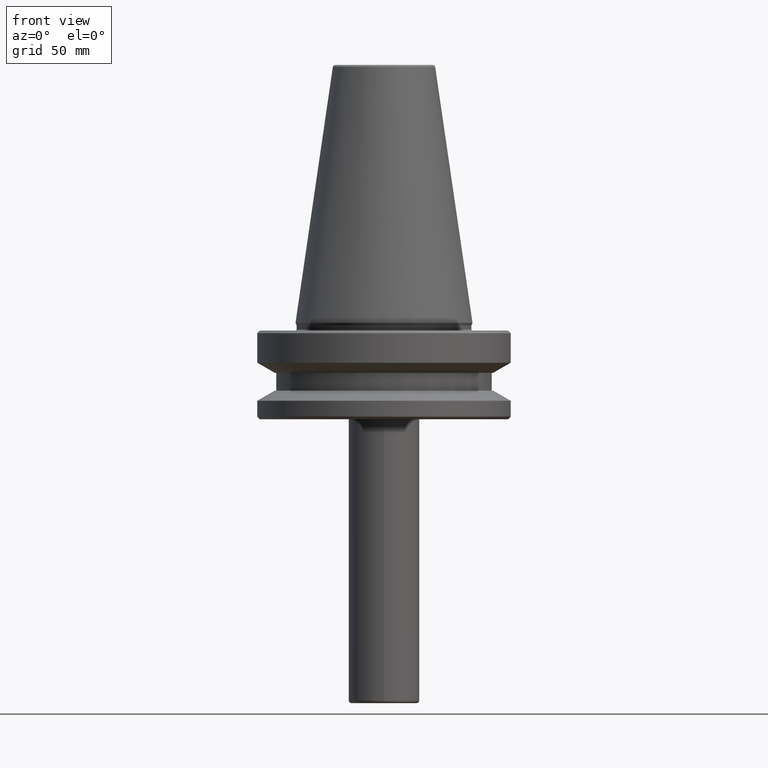
[diagram: clean part render]
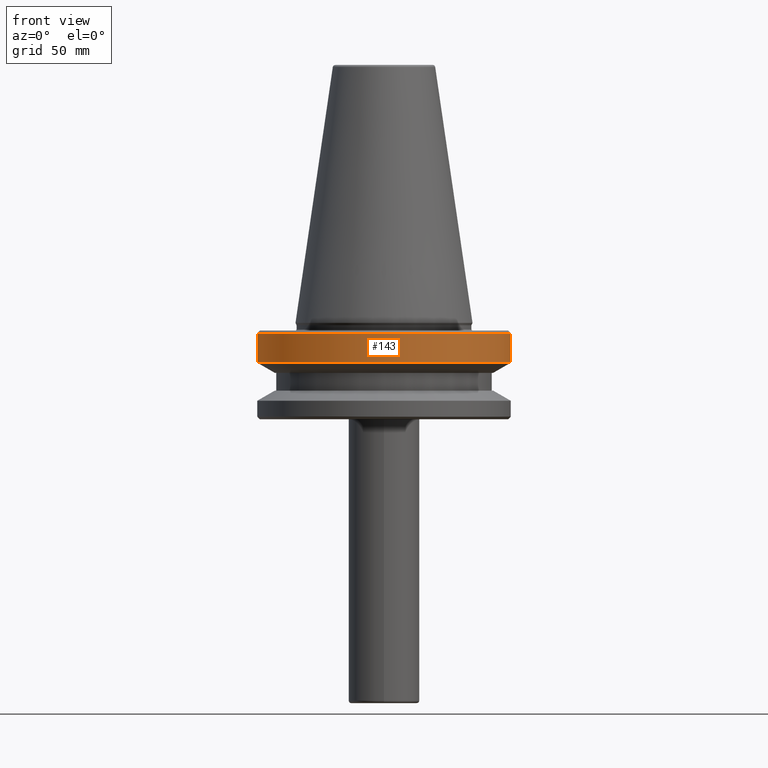
[diagram: same view with one face highlighted and labeled with its STEP entity id]
A machine part, front view. The second image highlights one B-rep face of the part: STEP entity #143.
In plain terms, the highlighted cylindrical surface (partial cylindrical patch) has radius 50 mm, axis along (-0, -0, 1).
Its self-contained STEP definition (entity closure, byte-faithful):
#8 = DIRECTION ( 'NONE',  ( 1.000000000000000000, 0.0000000000000000000, 0.0000000000000000000 ) ) ;
#15 = EDGE_CURVE ( 'NONE', #317, #313, #1008, .T. ) ;
#22 = ORIENTED_EDGE ( 'NONE', *, *, #454, .F. ) ;
#70 = CARTESIAN_POINT ( 'NONE',  ( 0.0000000000000000000, 0.0000000000000000000, -15.70022000322676600 ) ) ;
#126 = VERTEX_POINT ( 'NONE', #592 ) ;
#142 = ORIENTED_EDGE ( 'NONE', *, *, #15, .F. ) ;
#143 = ADVANCED_FACE ( 'NONE', ( #160 ), #821, .T. ) ;
#146 = EDGE_CURVE ( 'NONE', #126, #481, #712, .T. ) ;
#151 = DIRECTION ( 'NONE',  ( 1.000000000000000000, 0.0000000000000000000, 0.0000000000000000000 ) ) ;
#160 = FACE_OUTER_BOUND ( 'NONE', #423, .T. ) ;
#161 = CIRCLE ( 'NONE', #839, 50.00000000000000000 ) ;
#166 = EDGE_CURVE ( 'NONE', #317, #126, #359, .T. ) ;
#250 = AXIS2_PLACEMENT_3D ( 'NONE', #419, #877, #966 ) ;
#306 = VECTOR ( 'NONE', #1128, 1000.000000000000000 ) ;
#313 = VERTEX_POINT ( 'NONE', #692 ) ;
#317 = VERTEX_POINT ( 'NONE', #978 ) ;
#359 = CIRCLE ( 'NONE', #427, 50.00000000000000000 ) ;
#414 = VECTOR ( 'NONE', #883, 1000.000000000000000 ) ;
#419 = CARTESIAN_POINT ( 'NONE',  ( 0.0000000000000000000, 0.0000000000000000000, 69.75694866325665100 ) ) ;
#423 = EDGE_LOOP ( 'NONE', ( #142, #772, #449, #22 ) ) ;
#427 = AXIS2_PLACEMENT_3D ( 'NONE', #70, #680, #151 ) ;
#449 = ORIENTED_EDGE ( 'NONE', *, *, #146, .T. ) ;
#454 = EDGE_CURVE ( 'NONE', #313, #481, #161, .T. ) ;
#481 = VERTEX_POINT ( 'NONE', #525 ) ;
#521 = DIRECTION ( 'NONE',  ( -0.0000000000000000000, -0.0000000000000000000, 1.000000000000000000 ) ) ;
#525 = CARTESIAN_POINT ( 'NONE',  ( 50.00000000000000000, 0.0000000000000000000, -4.165685424949244500 ) ) ;
#576 = CARTESIAN_POINT ( 'NONE',  ( -50.00000000000000000, 6.123233995736766100E-015, 69.75694866325665100 ) ) ;
#592 = CARTESIAN_POINT ( 'NONE',  ( 50.00000000000000000, 0.0000000000000000000, -15.70022000322676600 ) ) ;
#680 = DIRECTION ( 'NONE',  ( -0.0000000000000000000, -0.0000000000000000000, 1.000000000000000000 ) ) ;
#685 = CARTESIAN_POINT ( 'NONE',  ( 50.00000000000000000, 0.0000000000000000000, 69.75694866325665100 ) ) ;
#692 = CARTESIAN_POINT ( 'NONE',  ( -50.00000000000000000, 6.123233995736766100E-015, -4.165685424949244500 ) ) ;
#712 = LINE ( 'NONE', #685, #414 ) ;
#772 = ORIENTED_EDGE ( 'NONE', *, *, #166, .T. ) ;
#821 = CYLINDRICAL_SURFACE ( 'NONE', #250, 50.00000000000000000 ) ;
#839 = AXIS2_PLACEMENT_3D ( 'NONE', #1078, #521, #8 ) ;
#877 = DIRECTION ( 'NONE',  ( -0.0000000000000000000, -0.0000000000000000000, 1.000000000000000000 ) ) ;
#883 = DIRECTION ( 'NONE',  ( -0.0000000000000000000, -0.0000000000000000000, 1.000000000000000000 ) ) ;
#966 = DIRECTION ( 'NONE',  ( 1.000000000000000000, 0.0000000000000000000, 0.0000000000000000000 ) ) ;
#978 = CARTESIAN_POINT ( 'NONE',  ( -50.00000000000000000, 6.123233995736766100E-015, -15.70022000322676600 ) ) ;
#1008 = LINE ( 'NONE', #576, #306 ) ;
#1078 = CARTESIAN_POINT ( 'NONE',  ( 0.0000000000000000000, 0.0000000000000000000, -4.165685424949244500 ) ) ;
#1128 = DIRECTION ( 'NONE',  ( -0.0000000000000000000, -0.0000000000000000000, 1.000000000000000000 ) ) ;